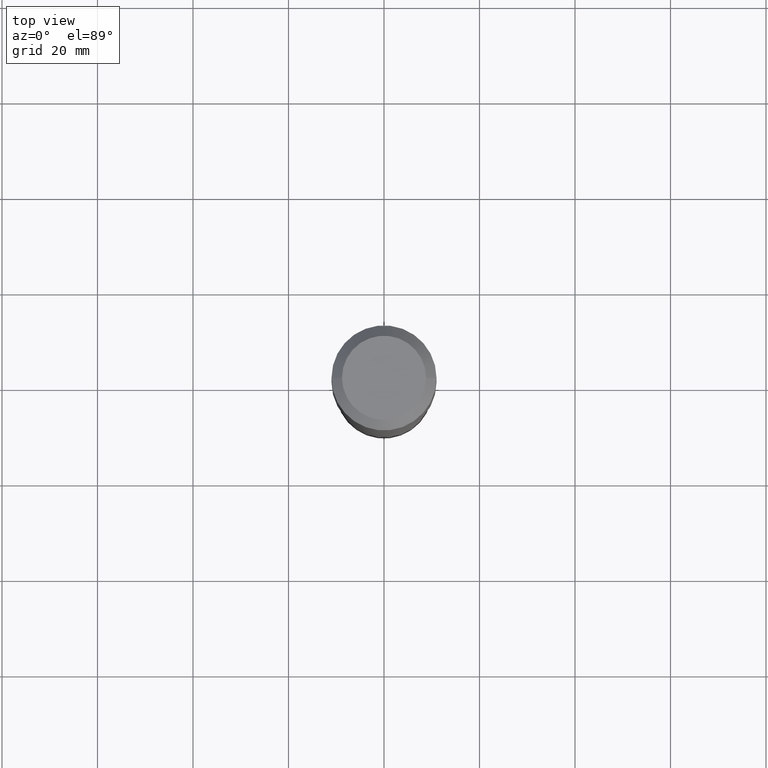
[diagram: clean part render]
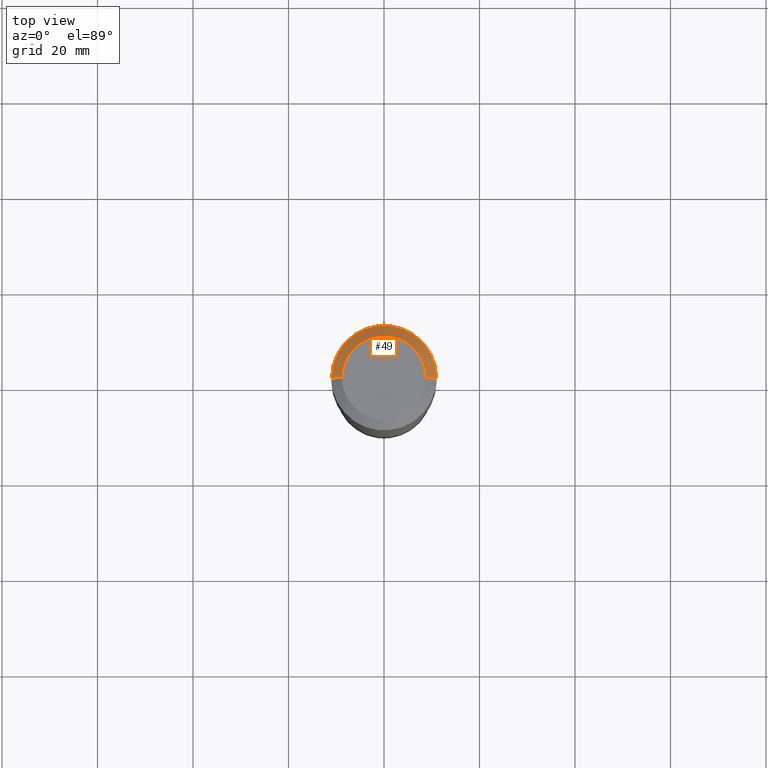
[diagram: same view with one face highlighted and labeled with its STEP entity id]
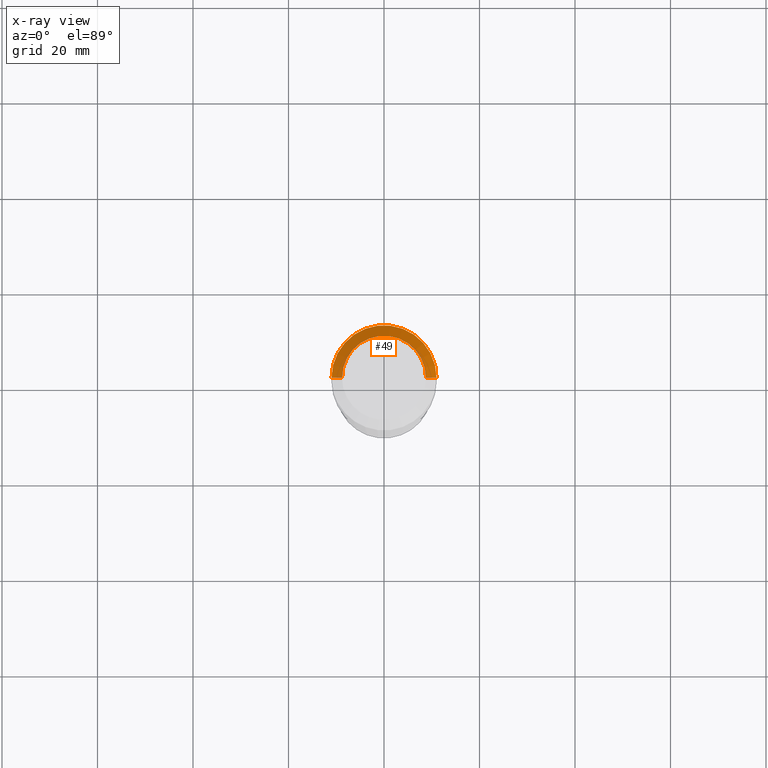
[diagram: x-ray of the same camera — body ghosted, the highlighted face saturated]
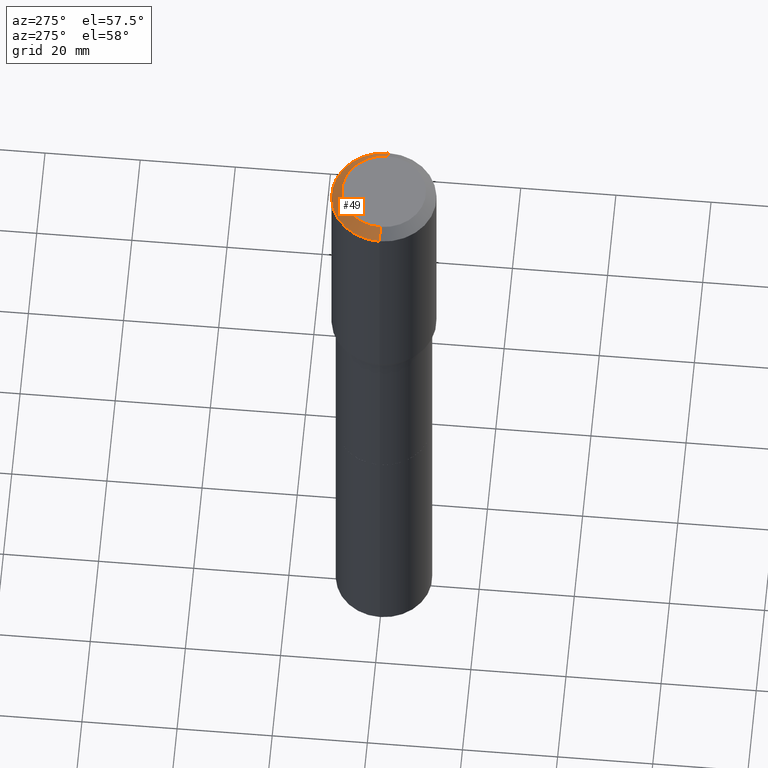
[diagram: same view with one face highlighted and labeled with its STEP entity id]
A machine part, top view. The second image highlights one B-rep face of the part: STEP entity #49.
The next image is the same camera in x-ray: the body ghosted, the highlighted face saturated — about 0% of this face is hidden behind the body in this view.
A second angle (auxiliary view) of the same face is appended — the face is thin or edge-on in the first view.
In plain terms, the highlighted conical surface has half-angle 45 deg.
Its self-contained STEP definition (entity closure, byte-faithful):
#12 = CARTESIAN_POINT ( 'NONE',  ( 2.118020533036960747E-30, -3.023971987572067913E-16, -0.08661000000000056154 ) ) ;
#19 = FACE_OUTER_BOUND ( 'NONE', #183, .T. ) ;
#30 = CARTESIAN_POINT ( 'NONE',  ( 0.4330500000000000460, -3.326369186329244629E-15, -0.08661000000000056154 ) ) ;
#42 = LINE ( 'NONE', #440, #357 ) ;
#49 = ADVANCED_FACE ( 'NONE', ( #19 ), #364, .T. ) ;
#66 = VERTEX_POINT ( 'NONE', #109 ) ;
#75 = DIRECTION ( 'NONE',  ( 1.000000000000000000, -6.982962677686266711E-15, 0.000000000000000000 ) ) ;
#109 = CARTESIAN_POINT ( 'NONE',  ( 0.3464400000000000257, -2.825043391520069124E-15, 3.855188123734197880E-18 ) ) ;
#110 = VERTEX_POINT ( 'NONE', #190 ) ;
#123 = AXIS2_PLACEMENT_3D ( 'NONE', #235, #423, #473 ) ;
#153 = CARTESIAN_POINT ( 'NONE',  ( -0.3464400000000000257, 2.570376189436231151E-15, 3.855188123698415642E-18 ) ) ;
#156 = ORIENTED_EDGE ( 'NONE', *, *, #304, .T. ) ;
#163 = DIRECTION ( 'NONE',  ( -1.000000000000000000, 6.982962677686266711E-15, 0.000000000000000000 ) ) ;
#168 = AXIS2_PLACEMENT_3D ( 'NONE', #461, #299, #75 ) ;
#176 = EDGE_CURVE ( 'NONE', #66, #468, #284, .T. ) ;
#183 = EDGE_LOOP ( 'NONE', ( #306, #156, #298, #369 ) ) ;
#188 = CIRCLE ( 'NONE', #168, 0.4330500000000000460 ) ;
#190 = CARTESIAN_POINT ( 'NONE',  ( -0.4330500000000000460, -5.288101724469795509E-16, -0.08661000000000056154 ) ) ;
#205 = DIRECTION ( 'NONE',  ( -0.7071067811865453523, 2.468850131082234184E-15, -0.7071067811865496822 ) ) ;
#231 = EDGE_CURVE ( 'NONE', #258, #110, #188, .T. ) ;
#235 = CARTESIAN_POINT ( 'NONE',  ( -9.427742298522546243E-47, 1.346031739168365344E-32, 3.855188123715862256E-18 ) ) ;
#239 = LINE ( 'NONE', #401, #410 ) ;
#258 = VERTEX_POINT ( 'NONE', #30 ) ;
#284 = CIRCLE ( 'NONE', #123, 0.3464400000000000257 ) ;
#298 = ORIENTED_EDGE ( 'NONE', *, *, #231, .T. ) ;
#299 = DIRECTION ( 'NONE',  ( -2.445468806185136597E-29, 3.491481338843145583E-15, 1.000000000000000000 ) ) ;
#304 = EDGE_CURVE ( 'NONE', #66, #258, #239, .T. ) ;
#306 = ORIENTED_EDGE ( 'NONE', *, *, #176, .F. ) ;
#324 = EDGE_CURVE ( 'NONE', #468, #110, #42, .T. ) ;
#357 = VECTOR ( 'NONE', #205, 39.37007874015748143 ) ;
#364 = CONICAL_SURFACE ( 'NONE', #368, 0.4330500000000000460, 0.7853981633974452814 ) ;
#368 = AXIS2_PLACEMENT_3D ( 'NONE', #12, #458, #163 ) ;
#369 = ORIENTED_EDGE ( 'NONE', *, *, #324, .F. ) ;
#401 = CARTESIAN_POINT ( 'NONE',  ( 0.4330500000000000460, -3.273335856692168975E-15, -0.08661000000000056154 ) ) ;
#403 = DIRECTION ( 'NONE',  ( 0.7071067811865453523, -7.319954787623248157E-15, -0.7071067811865496822 ) ) ;
#410 = VECTOR ( 'NONE', #403, 39.37007874015748143 ) ;
#423 = DIRECTION ( 'NONE',  ( -2.445468806185136597E-29, 3.491481338843145583E-15, 1.000000000000000000 ) ) ;
#440 = CARTESIAN_POINT ( 'NONE',  ( -0.4330500000000000460, 2.721574788814831638E-15, -0.08661000000000056154 ) ) ;
#458 = DIRECTION ( 'NONE',  ( 2.445468806185136597E-29, -3.491481338843145583E-15, -1.000000000000000000 ) ) ;
#461 = CARTESIAN_POINT ( 'NONE',  ( 2.118020533036960747E-30, -3.023971987572067913E-16, -0.08661000000000056154 ) ) ;
#468 = VERTEX_POINT ( 'NONE', #153 ) ;
#473 = DIRECTION ( 'NONE',  ( 1.000000000000000000, -6.982962677686265922E-15, 4.876202609618050646E-29 ) ) ;